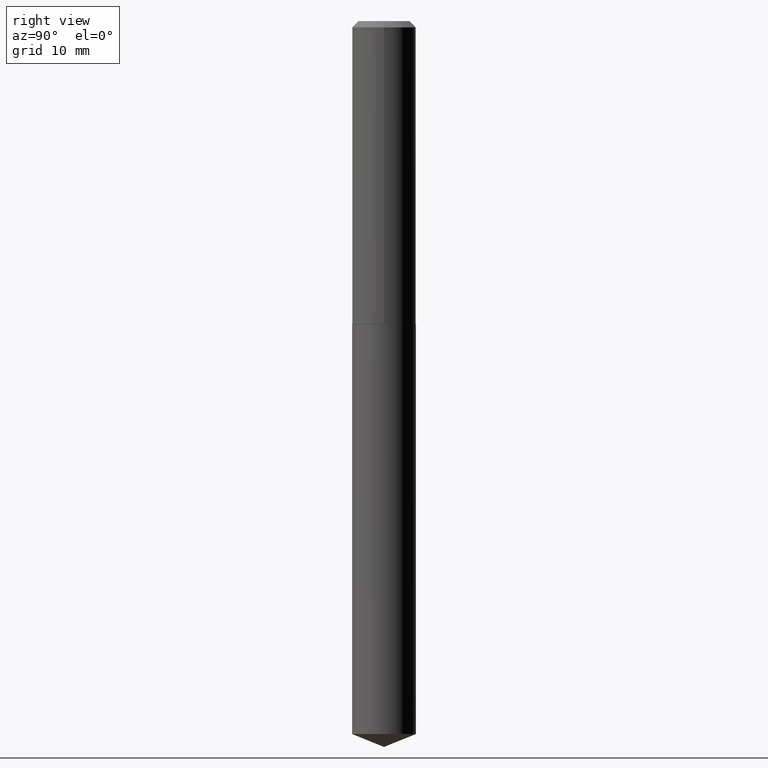
[diagram: clean part render]
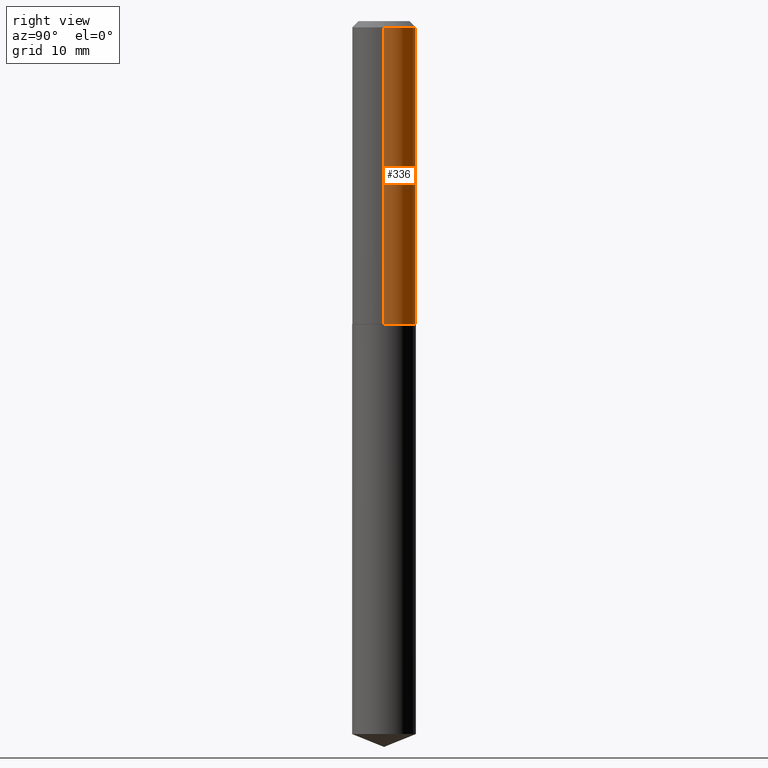
[diagram: same view with one face highlighted and labeled with its STEP entity id]
A machine part, right view. The second image highlights one B-rep face of the part: STEP entity #336.
In plain terms, the highlighted cylindrical surface (edge-blend (fillet) strip) has radius 4.0005 mm, axis along (-0, 0, 1).
Its self-contained STEP definition (entity closure, byte-faithful):
#1 = LINE ( 'NONE', #119, #308 ) ;
#8 = ORIENTED_EDGE ( 'NONE', *, *, #223, .T. ) ;
#13 = EDGE_CURVE ( 'NONE', #280, #236, #122, .T. ) ;
#29 = ORIENTED_EDGE ( 'NONE', *, *, #313, .T. ) ;
#30 = CYLINDRICAL_SURFACE ( 'NONE', #41, 0.1575000000000000844 ) ;
#41 = AXIS2_PLACEMENT_3D ( 'NONE', #93, #198, #296 ) ;
#44 = EDGE_LOOP ( 'NONE', ( #29, #8, #379, #311 ) ) ;
#73 = DIRECTION ( 'NONE',  ( 1.000000000000000000, -6.982962677686267499E-15, 0.000000000000000000 ) ) ;
#74 = DIRECTION ( 'NONE',  ( 1.000000000000000000, -6.982962677686265922E-15, 0.000000000000000000 ) ) ;
#86 = CARTESIAN_POINT ( 'NONE',  ( 0.1575000000000001676, -6.322723556511050117E-15, -1.495900000000000230 ) ) ;
#93 = CARTESIAN_POINT ( 'NONE',  ( 0.000000000000000000, 0.000000000000000000, 0.000000000000000000 ) ) ;
#119 = CARTESIAN_POINT ( 'NONE',  ( 0.1575000000000000844, -1.099816621735587677E-15, 7.679978421878603638E-30 ) ) ;
#122 = CIRCLE ( 'NONE', #288, 0.1575000000000000011 ) ;
#152 = CARTESIAN_POINT ( 'NONE',  ( 0.1575000000000000011, -1.208925413574435989E-15, -0.03125000000000020817 ) ) ;
#157 = DIRECTION ( 'NONE',  ( -2.445468806185136877E-29, 3.491481338843145188E-15, 1.000000000000000000 ) ) ;
#159 = AXIS2_PLACEMENT_3D ( 'NONE', #354, #298, #73 ) ;
#163 = CIRCLE ( 'NONE', #159, 0.1575000000000001676 ) ;
#191 = FACE_OUTER_BOUND ( 'NONE', #44, .T. ) ;
#198 = DIRECTION ( 'NONE',  ( -2.445468806185136597E-29, 3.491481338843145583E-15, 1.000000000000000000 ) ) ;
#199 = CARTESIAN_POINT ( 'NONE',  ( -0.1575000000000001676, -4.103802125953303455E-15, -1.495900000000000230 ) ) ;
#215 = CARTESIAN_POINT ( 'NONE',  ( -0.1575000000000000844, 1.119104808822158392E-15, -7.747322767151481189E-30 ) ) ;
#223 = EDGE_CURVE ( 'NONE', #314, #236, #234, .T. ) ;
#234 = LINE ( 'NONE', #215, #364 ) ;
#236 = VERTEX_POINT ( 'NONE', #339 ) ;
#247 = CARTESIAN_POINT ( 'NONE',  ( 7.642090019328602662E-31, -1.091087918388490267E-16, -0.03125000000000020817 ) ) ;
#249 = EDGE_CURVE ( 'NONE', #344, #280, #1, .T. ) ;
#280 = VERTEX_POINT ( 'NONE', #152 ) ;
#288 = AXIS2_PLACEMENT_3D ( 'NONE', #247, #340, #74 ) ;
#296 = DIRECTION ( 'NONE',  ( 1.000000000000000000, -6.982962677686267499E-15, 4.876176775795936353E-29 ) ) ;
#298 = DIRECTION ( 'NONE',  ( -2.445468806185136597E-29, 3.491481338843145583E-15, 1.000000000000000000 ) ) ;
#305 = DIRECTION ( 'NONE',  ( -2.445468806185136877E-29, 3.491481338843145188E-15, 1.000000000000000000 ) ) ;
#308 = VECTOR ( 'NONE', #305, 39.37007874015748143 ) ;
#311 = ORIENTED_EDGE ( 'NONE', *, *, #249, .F. ) ;
#313 = EDGE_CURVE ( 'NONE', #344, #314, #163, .T. ) ;
#314 = VERTEX_POINT ( 'NONE', #199 ) ;
#336 = ADVANCED_FACE ( 'NONE', ( #191 ), #30, .T. ) ;
#339 = CARTESIAN_POINT ( 'NONE',  ( -0.1575000000000000011, -1.546903054484996885E-15, -0.03125000000000020817 ) ) ;
#340 = DIRECTION ( 'NONE',  ( -2.445468806185136597E-29, 3.491481338843145583E-15, 1.000000000000000000 ) ) ;
#344 = VERTEX_POINT ( 'NONE', #86 ) ;
#354 = CARTESIAN_POINT ( 'NONE',  ( 3.658176787172346501E-29, -5.222906934775461847E-15, -1.495900000000000230 ) ) ;
#364 = VECTOR ( 'NONE', #157, 39.37007874015748143 ) ;
#379 = ORIENTED_EDGE ( 'NONE', *, *, #13, .F. ) ;